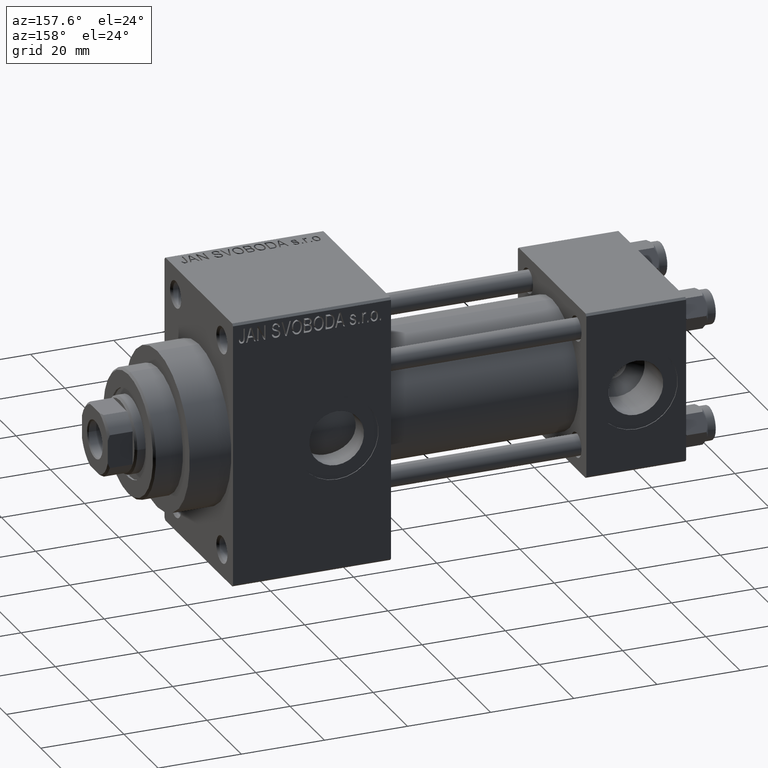
[diagram: clean part render]
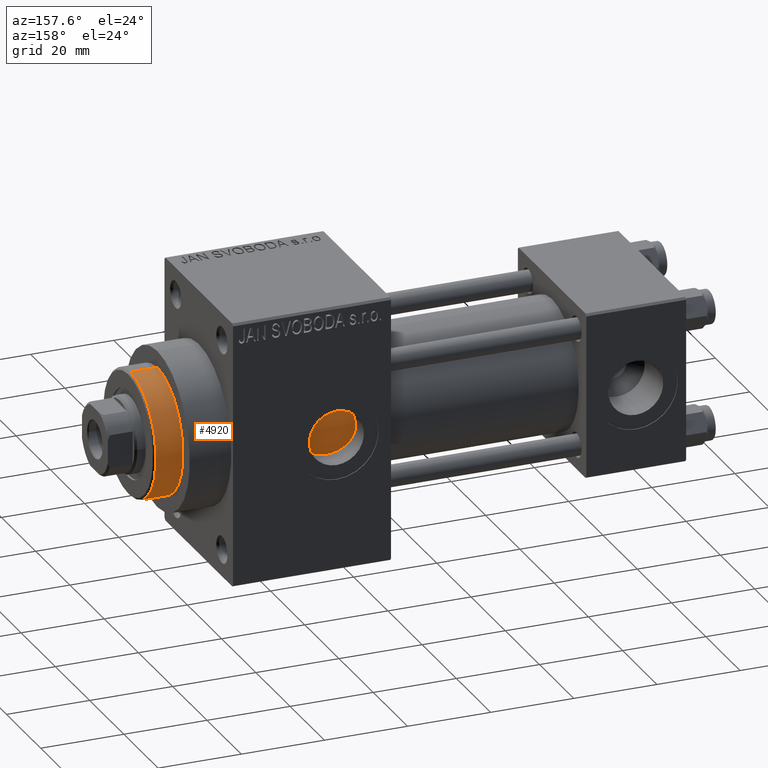
[diagram: same view with one face highlighted and labeled with its STEP entity id]
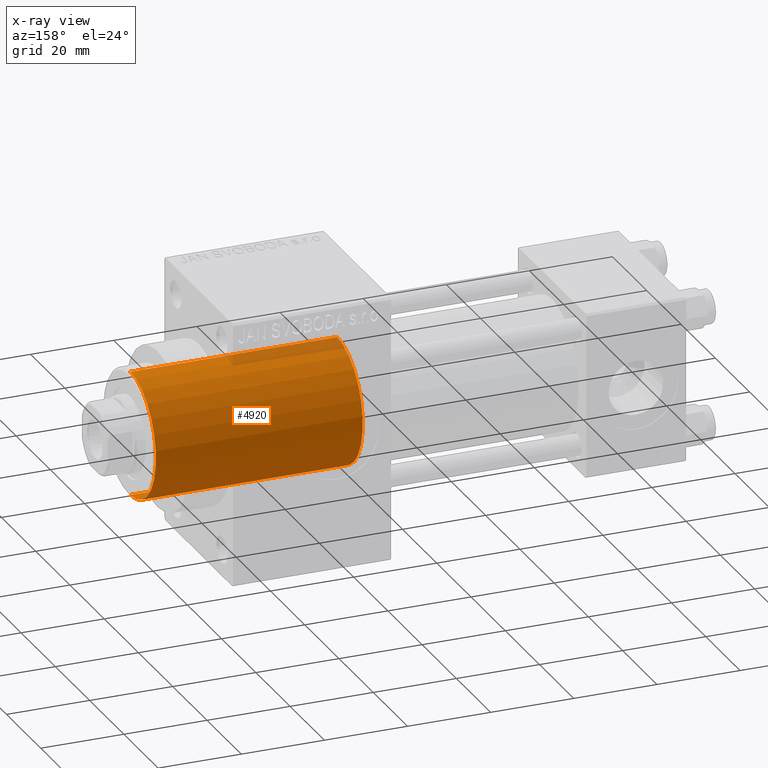
[diagram: x-ray of the same camera — body ghosted, the highlighted face saturated]
A machine part, auxiliary view. The second image highlights one B-rep face of the part: STEP entity #4920.
The next image is the same camera in x-ray: the body ghosted, the highlighted face saturated — about 5% of this face is hidden behind the body in this view.
In plain terms, the highlighted cylindrical surface (partial cylindrical patch) has radius 15 mm, axis along (-1, 0, 0).
Its self-contained STEP definition (entity closure, byte-faithful):
#18 = DIRECTION ( 'NONE',  ( -0.000000000000000000, -0.000000000000000000, -1.000000000000000000 ) ) ;
#2454 = EDGE_CURVE ( 'NONE', #24166, #32880, #25074, .T. ) ;
#2521 = ORIENTED_EDGE ( 'NONE', *, *, #29662, .T. ) ;
#2592 = LINE ( 'NONE', #44431, #43718 ) ;
#4920 = ADVANCED_FACE ( 'NONE', ( #20371 ), #18727, .T. ) ;
#6009 = DIRECTION ( 'NONE',  ( 1.000000000000000000, 0.000000000000000000, 0.000000000000000000 ) ) ;
#7533 = AXIS2_PLACEMENT_3D ( 'NONE', #28915, #13441, #48130 ) ;
#9069 = EDGE_CURVE ( 'NONE', #32880, #46554, #31328, .T. ) ;
#9487 = ORIENTED_EDGE ( 'NONE', *, *, #9069, .T. ) ;
#9573 = CARTESIAN_POINT ( 'NONE',  ( -15.00000000000000000, 0.000000000000000000, 43.25999999999999801 ) ) ;
#9934 = CARTESIAN_POINT ( 'NONE',  ( 0.000000000000000000, 0.000000000000000000, 0.000000000000000000 ) ) ;
#10447 = ORIENTED_EDGE ( 'NONE', *, *, #2454, .T. ) ;
#10883 = AXIS2_PLACEMENT_3D ( 'NONE', #33732, #18, #15046 ) ;
#13441 = DIRECTION ( 'NONE',  ( 0.000000000000000000, 0.000000000000000000, -1.000000000000000000 ) ) ;
#15046 = DIRECTION ( 'NONE',  ( -1.000000000000000000, 0.000000000000000000, 0.000000000000000000 ) ) ;
#16995 = EDGE_LOOP ( 'NONE', ( #30319, #2521, #10447, #9487 ) ) ;
#17608 = DIRECTION ( 'NONE',  ( -0.000000000000000000, -0.000000000000000000, -1.000000000000000000 ) ) ;
#18727 = CYLINDRICAL_SURFACE ( 'NONE', #10883, 15.00000000000000000 ) ;
#19034 = CARTESIAN_POINT ( 'NONE',  ( 15.00000000000000000, 1.836970198721029589E-15, 0.000000000000000000 ) ) ;
#20371 = FACE_OUTER_BOUND ( 'NONE', #16995, .T. ) ;
#21372 = DIRECTION ( 'NONE',  ( -0.000000000000000000, -0.000000000000000000, -1.000000000000000000 ) ) ;
#24166 = VERTEX_POINT ( 'NONE', #38703 ) ;
#24263 = CARTESIAN_POINT ( 'NONE',  ( 15.00000000000000000, 1.836970198721029589E-15, 49.75999999999998380 ) ) ;
#25074 = LINE ( 'NONE', #9573, #34343 ) ;
#25212 = DIRECTION ( 'NONE',  ( 0.000000000000000000, 0.000000000000000000, 1.000000000000000000 ) ) ;
#25329 = CARTESIAN_POINT ( 'NONE',  ( -15.00000000000000000, 0.000000000000000000, 0.000000000000000000 ) ) ;
#28915 = CARTESIAN_POINT ( 'NONE',  ( 0.000000000000000000, 0.000000000000000000, 49.75999999999998380 ) ) ;
#29662 = EDGE_CURVE ( 'NONE', #33712, #24166, #38199, .T. ) ;
#30319 = ORIENTED_EDGE ( 'NONE', *, *, #37452, .F. ) ;
#31328 = CIRCLE ( 'NONE', #34454, 15.00000000000000000 ) ;
#32880 = VERTEX_POINT ( 'NONE', #25329 ) ;
#33712 = VERTEX_POINT ( 'NONE', #24263 ) ;
#33732 = CARTESIAN_POINT ( 'NONE',  ( 0.000000000000000000, 0.000000000000000000, 43.25999999999999801 ) ) ;
#34343 = VECTOR ( 'NONE', #21372, 1000.000000000000000 ) ;
#34454 = AXIS2_PLACEMENT_3D ( 'NONE', #9934, #25212, #6009 ) ;
#37452 = EDGE_CURVE ( 'NONE', #33712, #46554, #2592, .T. ) ;
#38199 = CIRCLE ( 'NONE', #7533, 15.00000000000000000 ) ;
#38703 = CARTESIAN_POINT ( 'NONE',  ( -15.00000000000000000, 0.000000000000000000, 49.75999999999998380 ) ) ;
#43718 = VECTOR ( 'NONE', #17608, 1000.000000000000000 ) ;
#44431 = CARTESIAN_POINT ( 'NONE',  ( 15.00000000000000000, 1.836970198721029589E-15, 43.25999999999999801 ) ) ;
#46554 = VERTEX_POINT ( 'NONE', #19034 ) ;
#48130 = DIRECTION ( 'NONE',  ( 1.000000000000000000, 0.000000000000000000, 0.000000000000000000 ) ) ;